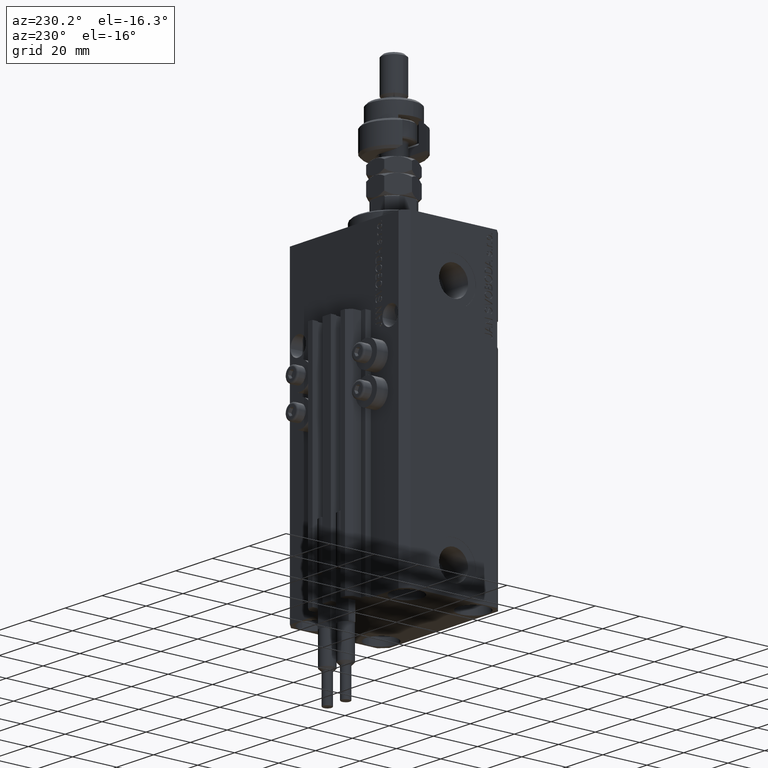
[diagram: clean part render]
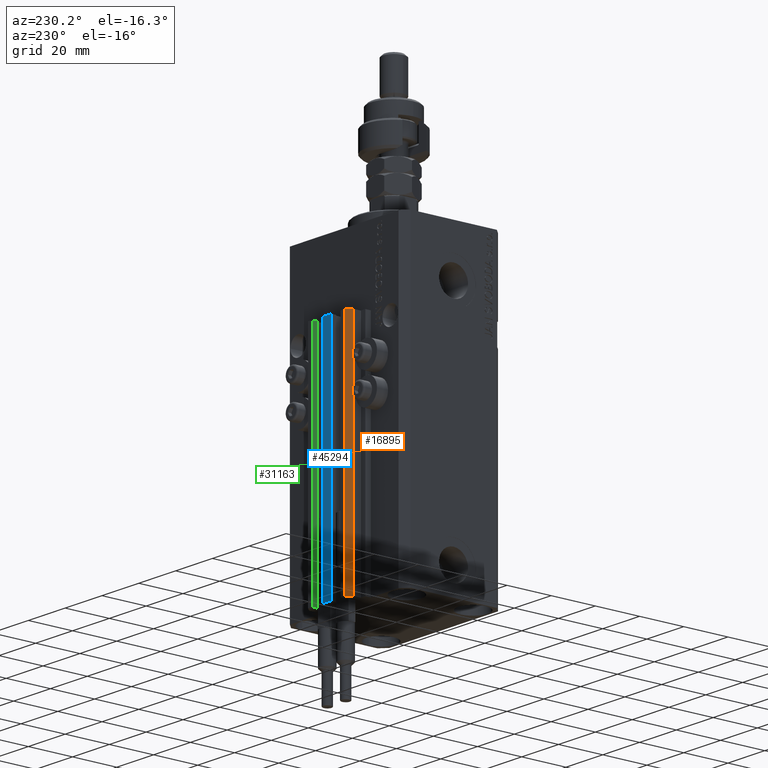
[diagram: same view with three faces highlighted in distinct colors, each labeled with its STEP entity id]
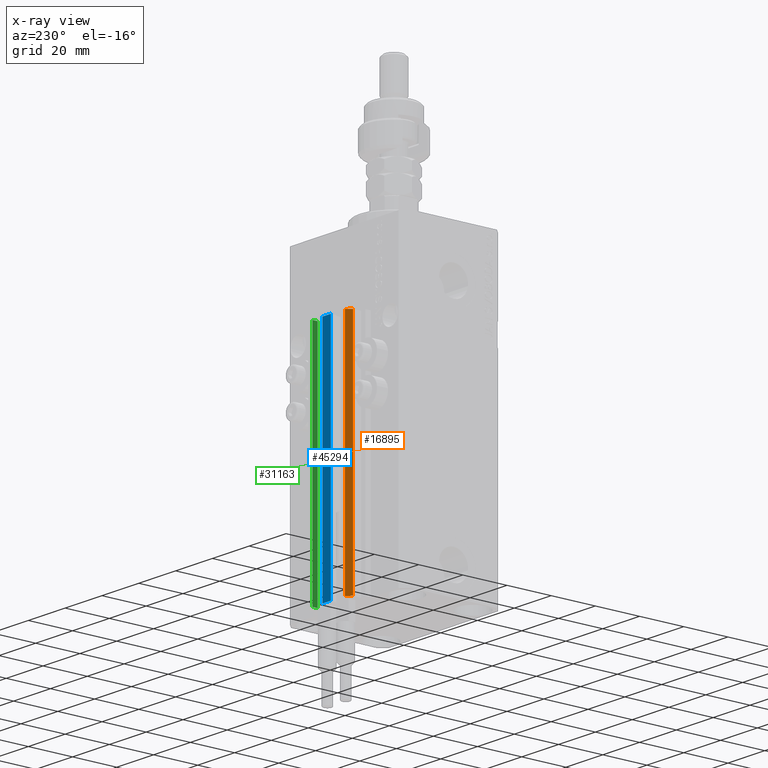
[diagram: x-ray of the same camera — body ghosted, the three highlighted faces saturated]
A machine part, auxiliary view with three faces highlighted in distinct colors.
The next image is the same camera in x-ray (body ghosted, the three faces saturated) — at least one of them is partly hidden behind the body in this view.
Their STEP definitions:

[orange] entity #16895 — the highlighted planar face has unit normal (-0.7071, 0.7071, 0).
#65 = EDGE_LOOP ( 'NONE', ( #49525, #30808, #6895, #35661 ) ) ;
#3882 = LINE ( 'NONE', #38574, #36270 ) ;
#5697 = CARTESIAN_POINT ( 'NONE',  ( -10.00000000000000000, 30.49999999999948841, -33.00000000000000000 ) ) ;
#6078 = VERTEX_POINT ( 'NONE', #50639 ) ;
#6895 = ORIENTED_EDGE ( 'NONE', *, *, #12779, .T. ) ;
#7575 = CARTESIAN_POINT ( 'NONE',  ( -12.00000000000000000, 28.49999999999948841, -137.0000000000000000 ) ) ;
#9051 = CARTESIAN_POINT ( 'NONE',  ( -12.00000000000000000, 28.49999999999948841, -33.00000000000000000 ) ) ;
#12180 = CARTESIAN_POINT ( 'NONE',  ( -10.00000000000000000, 30.49999999999948841, -137.0000000000000000 ) ) ;
#12779 = EDGE_CURVE ( 'NONE', #6078, #13873, #3882, .T. ) ;
#13873 = VERTEX_POINT ( 'NONE', #7575 ) ;
#14944 = CARTESIAN_POINT ( 'NONE',  ( -10.00000000000000000, 30.49999999999948841, -33.00000000000000000 ) ) ;
#15487 = LINE ( 'NONE', #34782, #42459 ) ;
#16677 = AXIS2_PLACEMENT_3D ( 'NONE', #27014, #20062, #23675 ) ;
#16895 = ADVANCED_FACE ( 'NONE', ( #46787 ), #32157, .T. ) ;
#19604 = DIRECTION ( 'NONE',  ( 0.000000000000000000, 0.000000000000000000, 1.000000000000000000 ) ) ;
#20062 = DIRECTION ( 'NONE',  ( -0.7071067811865479058, 0.7071067811865472397, 0.000000000000000000 ) ) ;
#22601 = VERTEX_POINT ( 'NONE', #5697 ) ;
#23675 = DIRECTION ( 'NONE',  ( -0.7071067811865472397, -0.7071067811865479058, 0.000000000000000000 ) ) ;
#25901 = EDGE_CURVE ( 'NONE', #6078, #22601, #31226, .T. ) ;
#27014 = CARTESIAN_POINT ( 'NONE',  ( -10.00000000000000000, 30.49999999999948841, -137.0000000000000000 ) ) ;
#27873 = DIRECTION ( 'NONE',  ( 0.000000000000000000, 0.000000000000000000, 1.000000000000000000 ) ) ;
#28552 = EDGE_CURVE ( 'NONE', #13873, #46873, #15487, .T. ) ;
#30387 = DIRECTION ( 'NONE',  ( -0.7071067811865472397, -0.7071067811865479058, 0.000000000000000000 ) ) ;
#30808 = ORIENTED_EDGE ( 'NONE', *, *, #25901, .F. ) ;
#31126 = DIRECTION ( 'NONE',  ( -0.7071067811865472397, -0.7071067811865479058, 0.000000000000000000 ) ) ;
#31226 = LINE ( 'NONE', #12180, #43975 ) ;
#32157 = PLANE ( 'NONE',  #16677 ) ;
#34782 = CARTESIAN_POINT ( 'NONE',  ( -12.00000000000000000, 28.49999999999948841, -137.0000000000000000 ) ) ;
#35661 = ORIENTED_EDGE ( 'NONE', *, *, #28552, .T. ) ;
#36270 = VECTOR ( 'NONE', #31126, 999.9999999999998863 ) ;
#36867 = VECTOR ( 'NONE', #30387, 999.9999999999998863 ) ;
#38574 = CARTESIAN_POINT ( 'NONE',  ( -10.00000000000000000, 30.49999999999948841, -137.0000000000000000 ) ) ;
#42459 = VECTOR ( 'NONE', #19604, 1000.000000000000000 ) ;
#43975 = VECTOR ( 'NONE', #27873, 1000.000000000000000 ) ;
#46787 = FACE_OUTER_BOUND ( 'NONE', #65, .T. ) ;
#46873 = VERTEX_POINT ( 'NONE', #9051 ) ;
#47939 = EDGE_CURVE ( 'NONE', #22601, #46873, #50395, .T. ) ;
#49525 = ORIENTED_EDGE ( 'NONE', *, *, #47939, .F. ) ;
#50395 = LINE ( 'NONE', #14944, #36867 ) ;
#50639 = CARTESIAN_POINT ( 'NONE',  ( -10.00000000000000000, 30.49999999999948841, -137.0000000000000000 ) ) ;

[blue] entity #45294 — the highlighted planar face has unit normal (0, -1, 0).
#4063 = PLANE ( 'NONE',  #15422 ) ;
#6313 = DIRECTION ( 'NONE',  ( 0.000000000000000000, 0.000000000000000000, 1.000000000000000000 ) ) ;
#6609 = VERTEX_POINT ( 'NONE', #17588 ) ;
#7379 = ORIENTED_EDGE ( 'NONE', *, *, #49865, .T. ) ;
#8158 = CARTESIAN_POINT ( 'NONE',  ( -2.350000000000003197, 30.49999999999949907, -137.0000000000000000 ) ) ;
#8450 = LINE ( 'NONE', #19508, #12464 ) ;
#8647 = FACE_OUTER_BOUND ( 'NONE', #45180, .T. ) ;
#9018 = VERTEX_POINT ( 'NONE', #37204 ) ;
#9717 = ORIENTED_EDGE ( 'NONE', *, *, #9723, .T. ) ;
#9723 = EDGE_CURVE ( 'NONE', #50570, #6609, #8450, .T. ) ;
#10916 = CARTESIAN_POINT ( 'NONE',  ( 2.349999999999999645, 30.49999999999949907, -137.0000000000000000 ) ) ;
#12464 = VECTOR ( 'NONE', #20017, 1000.000000000000000 ) ;
#15422 = AXIS2_PLACEMENT_3D ( 'NONE', #8158, #15857, #31562 ) ;
#15857 = DIRECTION ( 'NONE',  ( 0.000000000000000000, -1.000000000000000000, 0.000000000000000000 ) ) ;
#16052 = LINE ( 'NONE', #27899, #23663 ) ;
#17159 = CARTESIAN_POINT ( 'NONE',  ( -2.350000000000003197, 30.49999999999949907, -137.0000000000000000 ) ) ;
#17588 = CARTESIAN_POINT ( 'NONE',  ( -2.350000000000003197, 30.49999999999949907, -33.00000000000000000 ) ) ;
#19508 = CARTESIAN_POINT ( 'NONE',  ( -2.350000000000003197, 30.49999999999949907, -137.0000000000000000 ) ) ;
#20017 = DIRECTION ( 'NONE',  ( 0.000000000000000000, 0.000000000000000000, 1.000000000000000000 ) ) ;
#23663 = VECTOR ( 'NONE', #23789, 1000.000000000000000 ) ;
#23789 = DIRECTION ( 'NONE',  ( 1.000000000000000000, 0.000000000000000000, 0.000000000000000000 ) ) ;
#26365 = ORIENTED_EDGE ( 'NONE', *, *, #39094, .F. ) ;
#27899 = CARTESIAN_POINT ( 'NONE',  ( -2.350000000000003197, 30.49999999999949907, -137.0000000000000000 ) ) ;
#29564 = VECTOR ( 'NONE', #49082, 1000.000000000000000 ) ;
#30472 = LINE ( 'NONE', #10916, #39958 ) ;
#31562 = DIRECTION ( 'NONE',  ( 0.000000000000000000, -0.000000000000000000, -1.000000000000000000 ) ) ;
#32309 = VERTEX_POINT ( 'NONE', #50168 ) ;
#34174 = ORIENTED_EDGE ( 'NONE', *, *, #45636, .F. ) ;
#37204 = CARTESIAN_POINT ( 'NONE',  ( 2.349999999999999645, 30.49999999999949907, -33.00000000000000000 ) ) ;
#37291 = CARTESIAN_POINT ( 'NONE',  ( -2.350000000000003197, 30.49999999999949907, -33.00000000000000000 ) ) ;
#39094 = EDGE_CURVE ( 'NONE', #32309, #9018, #30472, .T. ) ;
#39958 = VECTOR ( 'NONE', #6313, 1000.000000000000000 ) ;
#40886 = LINE ( 'NONE', #37291, #29564 ) ;
#45180 = EDGE_LOOP ( 'NONE', ( #7379, #26365, #34174, #9717 ) ) ;
#45294 = ADVANCED_FACE ( 'NONE', ( #8647 ), #4063, .F. ) ;
#45636 = EDGE_CURVE ( 'NONE', #50570, #32309, #16052, .T. ) ;
#49082 = DIRECTION ( 'NONE',  ( 1.000000000000000000, 0.000000000000000000, 0.000000000000000000 ) ) ;
#49865 = EDGE_CURVE ( 'NONE', #6609, #9018, #40886, .T. ) ;
#50168 = CARTESIAN_POINT ( 'NONE',  ( 2.349999999999999645, 30.49999999999949907, -137.0000000000000000 ) ) ;
#50570 = VERTEX_POINT ( 'NONE', #17159 ) ;

[green] entity #31163 — the highlighted planar face has unit normal (-1, -0, 0).
#391 = DIRECTION ( 'NONE',  ( -1.000000000000000000, -3.614007241618365534E-16, 0.000000000000000000 ) ) ;
#947 = LINE ( 'NONE', #33059, #48038 ) ;
#7009 = CARTESIAN_POINT ( 'NONE',  ( 7.649999999999995914, 28.09999999999950404, -33.00000000000000000 ) ) ;
#8336 = DIRECTION ( 'NONE',  ( 3.614007241618365534E-16, -1.000000000000000000, 0.000000000000000000 ) ) ;
#8863 = VECTOR ( 'NONE', #37544, 1000.000000000000000 ) ;
#14559 = ORIENTED_EDGE ( 'NONE', *, *, #14957, .F. ) ;
#14957 = EDGE_CURVE ( 'NONE', #19923, #18884, #28575, .T. ) ;
#18884 = VERTEX_POINT ( 'NONE', #29093 ) ;
#19907 = FACE_OUTER_BOUND ( 'NONE', #48467, .T. ) ;
#19923 = VERTEX_POINT ( 'NONE', #35318 ) ;
#21862 = CARTESIAN_POINT ( 'NONE',  ( 7.649999999999995914, 28.09999999999950404, -137.0000000000000000 ) ) ;
#22352 = VERTEX_POINT ( 'NONE', #7009 ) ;
#23077 = ORIENTED_EDGE ( 'NONE', *, *, #45115, .T. ) ;
#24220 = CARTESIAN_POINT ( 'NONE',  ( 7.649999999999995914, 28.09999999999950404, -137.0000000000000000 ) ) ;
#24469 = DIRECTION ( 'NONE',  ( 0.000000000000000000, 0.000000000000000000, 1.000000000000000000 ) ) ;
#24953 = EDGE_CURVE ( 'NONE', #18884, #22352, #947, .T. ) ;
#27570 = CARTESIAN_POINT ( 'NONE',  ( 7.649999999999995026, 30.49999999999949196, -137.0000000000000000 ) ) ;
#28575 = LINE ( 'NONE', #27570, #40438 ) ;
#29093 = CARTESIAN_POINT ( 'NONE',  ( 7.649999999999995026, 30.49999999999949196, -33.00000000000000000 ) ) ;
#30350 = LINE ( 'NONE', #21862, #8863 ) ;
#31163 = ADVANCED_FACE ( 'NONE', ( #19907 ), #35596, .T. ) ;
#32956 = CARTESIAN_POINT ( 'NONE',  ( 7.649999999999995026, 30.49999999999949196, -137.0000000000000000 ) ) ;
#33059 = CARTESIAN_POINT ( 'NONE',  ( 7.649999999999995026, 30.49999999999949196, -33.00000000000000000 ) ) ;
#35318 = CARTESIAN_POINT ( 'NONE',  ( 7.649999999999995026, 30.49999999999949196, -137.0000000000000000 ) ) ;
#35596 = PLANE ( 'NONE',  #36793 ) ;
#35796 = LINE ( 'NONE', #32956, #42496 ) ;
#36793 = AXIS2_PLACEMENT_3D ( 'NONE', #44045, #391, #8336 ) ;
#37544 = DIRECTION ( 'NONE',  ( 0.000000000000000000, 0.000000000000000000, 1.000000000000000000 ) ) ;
#37742 = ORIENTED_EDGE ( 'NONE', *, *, #46034, .T. ) ;
#40438 = VECTOR ( 'NONE', #24469, 1000.000000000000000 ) ;
#42496 = VECTOR ( 'NONE', #48592, 1000.000000000000000 ) ;
#44045 = CARTESIAN_POINT ( 'NONE',  ( 7.649999999999995026, 30.49999999999949196, -137.0000000000000000 ) ) ;
#44848 = DIRECTION ( 'NONE',  ( 3.614007241618365534E-16, -1.000000000000000000, 0.000000000000000000 ) ) ;
#45115 = EDGE_CURVE ( 'NONE', #19923, #49767, #35796, .T. ) ;
#46034 = EDGE_CURVE ( 'NONE', #49767, #22352, #30350, .T. ) ;
#48038 = VECTOR ( 'NONE', #44848, 1000.000000000000000 ) ;
#48467 = EDGE_LOOP ( 'NONE', ( #48513, #14559, #23077, #37742 ) ) ;
#48513 = ORIENTED_EDGE ( 'NONE', *, *, #24953, .F. ) ;
#48592 = DIRECTION ( 'NONE',  ( 3.614007241618365534E-16, -1.000000000000000000, 0.000000000000000000 ) ) ;
#49767 = VERTEX_POINT ( 'NONE', #24220 ) ;